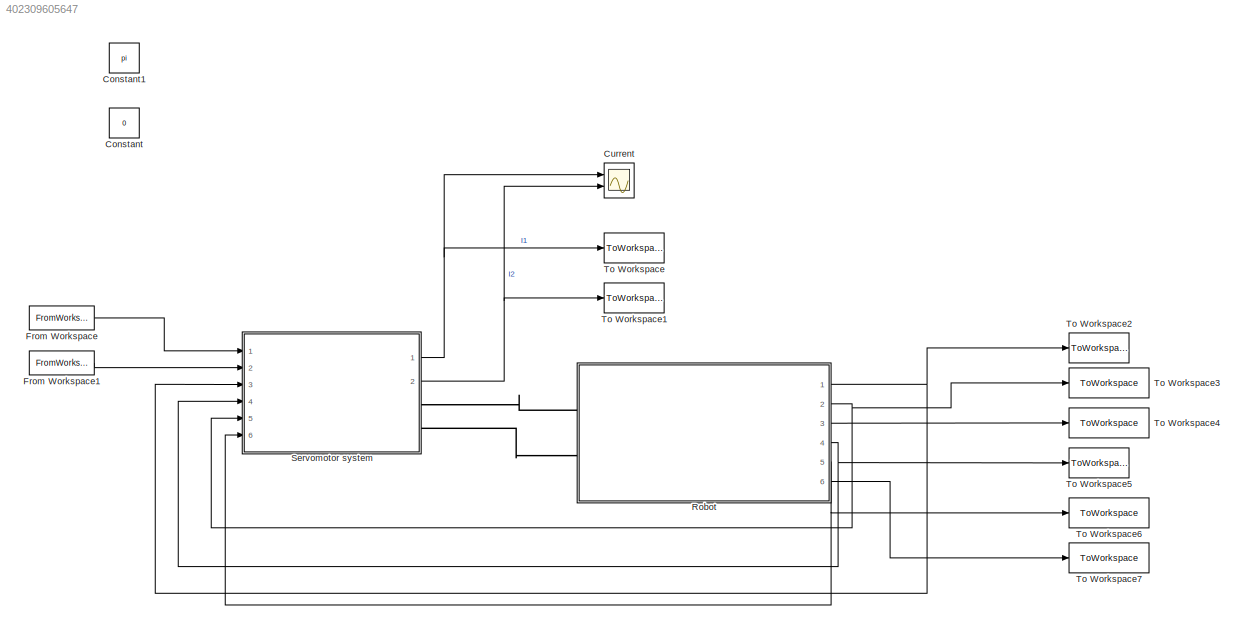
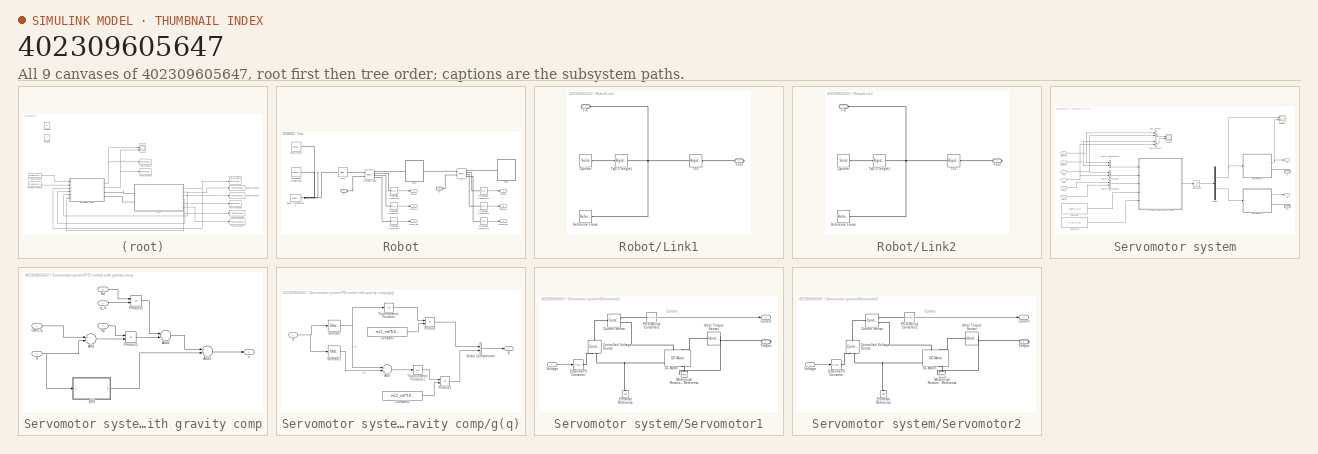
[diagram: thumbnail index - all 9 canvases of the model, root first then tree order]
MODEL slx_402309605647
KIND model
CONFIG AbsTol = auto
CONFIG EnableMultiTasking = off
CONFIG FixedStep = 1e-6
CONFIG MaxStep = auto
CONFIG MinStep = 1e-8
CONFIG RelTol = 1e-3
CONFIG SampleTimeConstraint = Unconstrained
CONFIG Solver = VariableStepAuto
CONFIG SolverName = VariableStepAuto
CONFIG StartTime = 0.0
CONFIG StopTime = tTotal
BLOCK [Constant] Constant
  Commented = on
  Value = 0
BLOCK [Constant] Constant1
  Commented = on
  Value = pi
BLOCK [Scope] Current
  NumInputPorts = 2
  Ports = [2]
  ScopeSpecificationString = Simulink.scopes.TimeScopeBlockCfg('CurrentConfiguration', extmgr.ConfigurationSet(extmgr.Configuration('Core','General UI',true),extmgr.Configuration('Core','Source UI',true),extmgr.Configuration('Sources','WiredSimulink',true,'DataLoggingVariableName','ScopeData1'),extmgr.Configuration('Visuals','Time Domain',true,'SerializedDisplays',{struct('MinYLimReal','-0.32223','MaxYLimReal','1.21648','YLab...<+1515ch>
BLOCK [FromWorkspace] From Workspace
  SampleTime = 0
  VariableName = q1_traj
  ZeroCross = on
BLOCK [FromWorkspace] From Workspace1
  SampleTime = 0
  VariableName = q2_traj
  ZeroCross = on
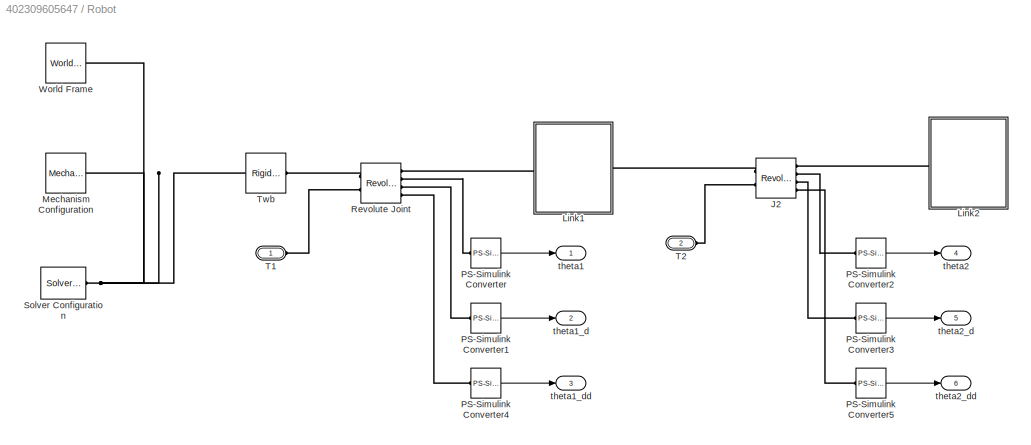
BLOCK [SubSystem] Robot
  Ports = [0, 6, 0, 0, 0, 2]
  RequestExecContextInheritance = off
  Variant = off
BLOCK [Reference] Robot/J2  REF=sm_lib/Joints/Revolute Joint
  Ports = [0, 0, 0, 0, 0, 2, 4]
  SourceBlock = sm_lib/Joints/Revolute Joint
  SourceProductBaseCode = MS
  SourceProductName = Simscape Multibody
  SourceType = Revolute Joint
BLOCK [SubSystem] Robot/Link1
  Ports = [0, 0, 0, 0, 0, 1, 1]
  RequestExecContextInheritance = off
  Variant = off
BLOCK [Reference] Robot/Link1/Cylinder  REF=sm_lib/Body Elements/Solid
  Ports = [0, 0, 0, 0, 0, 0, 1]
  SourceBlock = sm_lib/Body Elements/Solid
  SourceProductBaseCode = MS
  SourceProductName = Simscape Multibody
  SourceType = Solid
BLOCK [PMIOPort] Robot/Link1/Fin
  Port = 1
  Side = Left
BLOCK [PMIOPort] Robot/Link1/Fout
  Port = 2
  Side = Right
BLOCK [Reference] Robot/Link1/Reference Frame  REF=sm_lib/Frames and
Transforms/Reference
Frame
  Ports = [0, 0, 0, 0, 0, 0, 1]
  SourceBlock = sm_lib/Frames and\nTransforms/Reference\nFrame
  SourceProductBaseCode = MS
  SourceProductName = Simscape Multibody
  SourceType = Reference\nFrame
BLOCK [Reference] Robot/Link1/T01  REF=sm_lib/Frames and
Transforms/Rigid
Transform
  Ports = [0, 0, 0, 0, 0, 1, 1]
  SourceBlock = sm_lib/Frames and\nTransforms/Rigid\nTransform
  SourceProductBaseCode = MS
  SourceProductName = Simscape Multibody
  SourceType = Rigid\nTransform
BLOCK [Reference] Robot/Link1/Tz(0.5*length)  REF=sm_lib/Frames and
Transforms/Rigid
Transform
  Ports = [0, 0, 0, 0, 0, 1, 1]
  SourceBlock = sm_lib/Frames and\nTransforms/Rigid\nTransform
  SourceProductBaseCode = MS
  SourceProductName = Simscape Multibody
  SourceType = Rigid\nTransform
BLOCK [SubSystem] Robot/Link2
  Ports = [0, 0, 0, 0, 0, 1, 1]
  RequestExecContextInheritance = off
  Variant = off
BLOCK [Reference] Robot/Link2/Cylinder  REF=sm_lib/Body Elements/Solid
  Ports = [0, 0, 0, 0, 0, 0, 1]
  SourceBlock = sm_lib/Body Elements/Solid
  SourceProductBaseCode = MS
  SourceProductName = Simscape Multibody
  SourceType = Solid
BLOCK [PMIOPort] Robot/Link2/Fin
  Port = 1
  Side = Left
BLOCK [PMIOPort] Robot/Link2/Fout
  Port = 2
  Side = Right
BLOCK [Reference] Robot/Link2/Reference Frame  REF=sm_lib/Frames and
Transforms/Reference
Frame
  Ports = [0, 0, 0, 0, 0, 0, 1]
  SourceBlock = sm_lib/Frames and\nTransforms/Reference\nFrame
  SourceProductBaseCode = MS
  SourceProductName = Simscape Multibody
  SourceType = Reference\nFrame
BLOCK [Reference] Robot/Link2/T01  REF=sm_lib/Frames and
Transforms/Rigid
Transform
  Ports = [0, 0, 0, 0, 0, 1, 1]
  SourceBlock = sm_lib/Frames and\nTransforms/Rigid\nTransform
  SourceProductBaseCode = MS
  SourceProductName = Simscape Multibody
  SourceType = Rigid\nTransform
BLOCK [Reference] Robot/Link2/Tz(0.5*length)  REF=sm_lib/Frames and
Transforms/Rigid
Transform
  Ports = [0, 0, 0, 0, 0, 1, 1]
  SourceBlock = sm_lib/Frames and\nTransforms/Rigid\nTransform
  SourceProductBaseCode = MS
  SourceProductName = Simscape Multibody
  SourceType = Rigid\nTransform
BLOCK [Reference] Robot/Mechanism Configuration  REF=sm_lib/Utilities/Mechanism
Configuration
  Ports = [0, 0, 0, 0, 0, 0, 1]
  SourceBlock = sm_lib/Utilities/Mechanism\nConfiguration
  SourceProductBaseCode = MS
  SourceProductName = Simscape Multibody
  SourceType = Mechanism\nConfiguration
BLOCK [Reference] Robot/PS-Simulink Converter  REF=nesl_utility/PS-Simulink
Converter
  Ports = [0, 1, 0, 0, 0, 1]
  SourceBlock = nesl_utility/PS-Simulink\nConverter
  SourceProductBaseCode = SS
  SourceProductName = Simscape
  SourceType = PS-Simulink\nConverter
BLOCK [Reference] Robot/PS-Simulink Converter1  REF=nesl_utility/PS-Simulink
Converter
  Ports = [0, 1, 0, 0, 0, 1]
  SourceBlock = nesl_utility/PS-Simulink\nConverter
  SourceProductBaseCode = SS
  SourceProductName = Simscape
  SourceType = PS-Simulink\nConverter
BLOCK [Reference] Robot/PS-Simulink Converter2  REF=nesl_utility/PS-Simulink
Converter
  Ports = [0, 1, 0, 0, 0, 1]
  SourceBlock = nesl_utility/PS-Simulink\nConverter
  SourceProductBaseCode = SS
  SourceProductName = Simscape
  SourceType = PS-Simulink\nConverter
BLOCK [Reference] Robot/PS-Simulink Converter3  REF=nesl_utility/PS-Simulink
Converter
  Ports = [0, 1, 0, 0, 0, 1]
  SourceBlock = nesl_utility/PS-Simulink\nConverter
  SourceProductBaseCode = SS
  SourceProductName = Simscape
  SourceType = PS-Simulink\nConverter
BLOCK [Reference] Robot/PS-Simulink Converter4  REF=nesl_utility/PS-Simulink
Converter
  Ports = [0, 1, 0, 0, 0, 1]
  SourceBlock = nesl_utility/PS-Simulink\nConverter
  SourceProductBaseCode = SS
  SourceProductName = Simscape
  SourceType = PS-Simulink\nConverter
BLOCK [Reference] Robot/PS-Simulink Converter5  REF=nesl_utility/PS-Simulink
Converter
  Ports = [0, 1, 0, 0, 0, 1]
  SourceBlock = nesl_utility/PS-Simulink\nConverter
  SourceProductBaseCode = SS
  SourceProductName = Simscape
  SourceType = PS-Simulink\nConverter
BLOCK [Reference] Robot/Revolute Joint  REF=sm_lib/Joints/Revolute Joint
  Ports = [0, 0, 0, 0, 0, 2, 4]
  SourceBlock = sm_lib/Joints/Revolute Joint
  SourceProductBaseCode = MS
  SourceProductName = Simscape Multibody
  SourceType = Revolute Joint
BLOCK [Reference] Robot/Solver Configuration  REF=nesl_utility/Solver
Configuration
  Ports = [0, 0, 0, 0, 0, 0, 1]
  SourceBlock = nesl_utility/Solver\nConfiguration
  SourceProductBaseCode = SS
  SourceProductName = Simscape
  SourceType = Solver\nConfiguration
BLOCK [PMIOPort] Robot/T1
  Port = 1
  Side = Left
BLOCK [PMIOPort] Robot/T2
  Port = 2
  Side = Left
BLOCK [Reference] Robot/Twb  REF=sm_lib/Frames and
Transforms/Rigid
Transform
  Ports = [0, 0, 0, 0, 0, 1, 1]
  SourceBlock = sm_lib/Frames and\nTransforms/Rigid\nTransform
  SourceProductBaseCode = MS
  SourceProductName = Simscape Multibody
  SourceType = Rigid\nTransform
BLOCK [Reference] Robot/World Frame  REF=sm_lib/Frames and
Transforms/World Frame
  Ports = [0, 0, 0, 0, 0, 0, 1]
  SourceBlock = sm_lib/Frames and\nTransforms/World Frame
  SourceProductBaseCode = MS
  SourceProductName = Simscape Multibody
  SourceType = World Frame
BLOCK [Outport] Robot/theta1
  IconDisplay = Port number
BLOCK [Outport] Robot/theta1_d
  IconDisplay = Port number
  Port = 2
BLOCK [Outport] Robot/theta1_dd
  IconDisplay = Port number
  Port = 3
BLOCK [Outport] Robot/theta2
  IconDisplay = Port number
  Port = 4
BLOCK [Outport] Robot/theta2_d
  IconDisplay = Port number
  Port = 5
BLOCK [Outport] Robot/theta2_dd
  IconDisplay = Port number
  Port = 6
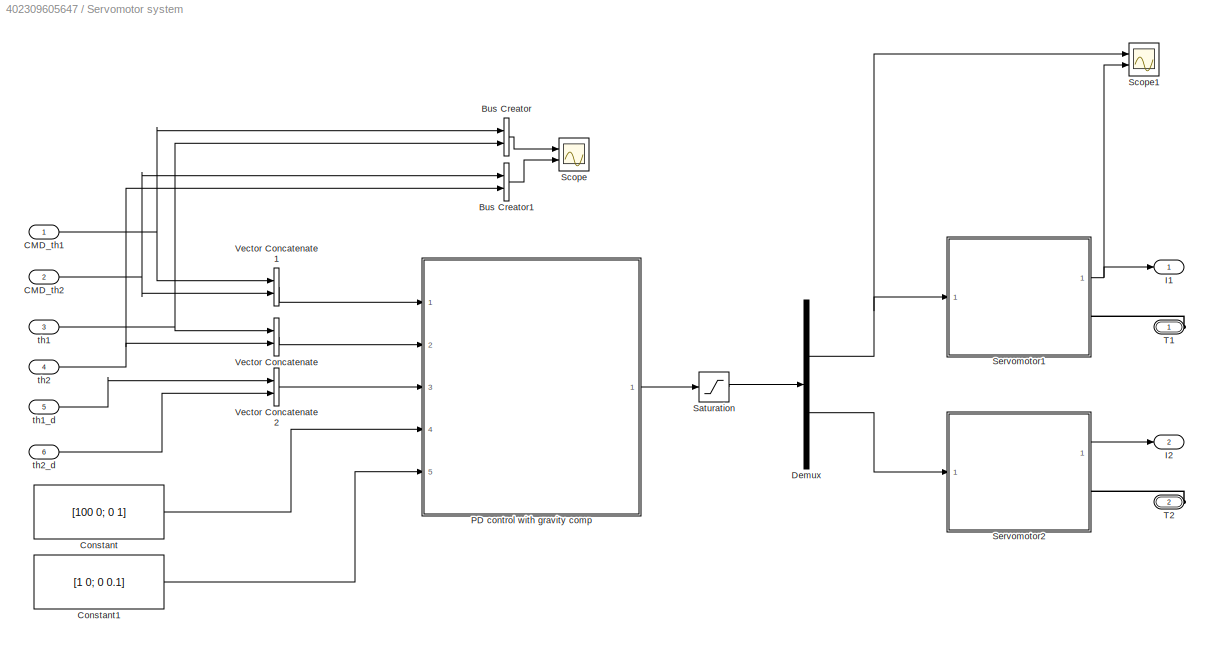
BLOCK [SubSystem] Servomotor system
  Ports = [6, 2, 0, 0, 0, 0, 2]
  RequestExecContextInheritance = off
  Variant = off
BLOCK [BusCreator] Servomotor system/Bus Creator
  DisplayOption = bar
  InheritFromInputs = on
  Inputs = 2
  Ports = [2, 1]
BLOCK [BusCreator] Servomotor system/Bus Creator1
  DisplayOption = bar
  InheritFromInputs = on
  Inputs = 2
  Ports = [2, 1]
BLOCK [Inport] Servomotor system/CMD_th1
  IconDisplay = Port number
BLOCK [Inport] Servomotor system/CMD_th2
  IconDisplay = Port number
  Port = 2
BLOCK [Constant] Servomotor system/Constant
  Value = [100 0; 0 1]
BLOCK [Constant] Servomotor system/Constant1
  Value = [1 0; 0 0.1]
BLOCK [Demux] Servomotor system/Demux
  DisplayOption = bar
  Outputs = 2
  Ports = [1, 2]
BLOCK [Outport] Servomotor system/I1
  IconDisplay = Port number
BLOCK [Outport] Servomotor system/I2
  IconDisplay = Port number
  Port = 2
BLOCK [SubSystem] Servomotor system/PD control with gravity comp
  Ports = [5, 1]
  RequestExecContextInheritance = off
  Variant = off
BLOCK [Sum] Servomotor system/PD control with gravity comp/Add
  InputSameDT = off
  Inputs = +-
  OutDataTypeStr = Inherit: Inherit via internal rule
  Ports = [2, 1]
  SaturateOnIntegerOverflow = off
BLOCK [Sum] Servomotor system/PD control with gravity comp/Add1
  InputSameDT = off
  Inputs = -+
  OutDataTypeStr = Inherit: Inherit via internal rule
  Ports = [2, 1]
  SaturateOnIntegerOverflow = off
BLOCK [Sum] Servomotor system/PD control with gravity comp/Add2
  InputSameDT = off
  OutDataTypeStr = Inherit: Inherit via internal rule
  Ports = [2, 1]
  SaturateOnIntegerOverflow = off
BLOCK [Inport] Servomotor system/PD control with gravity comp/CMD_q
  IconDisplay = Port number
  PortDimensions = [2 1]
BLOCK [Inport] Servomotor system/PD control with gravity comp/Kd
  IconDisplay = Port number
  Port = 5
  PortDimensions = [2 2]
BLOCK [Inport] Servomotor system/PD control with gravity comp/Kp
  IconDisplay = Port number
  Port = 4
  PortDimensions = [2 2]
BLOCK [Product] Servomotor system/PD control with gravity comp/Product1
  InputSameDT = off
  Multiplication = Matrix(*)
  OutDataTypeStr = Inherit: Inherit via internal rule
  Ports = [2, 1]
  RndMeth = Floor
  SaturateOnIntegerOverflow = off
BLOCK [Product] Servomotor system/PD control with gravity comp/Product2
  InputSameDT = off
  Multiplication = Matrix(*)
  OutDataTypeStr = Inherit: Inherit via internal rule
  Ports = [2, 1]
  RndMeth = Floor
  SaturateOnIntegerOverflow = off
BLOCK [SubSystem] Servomotor system/PD control with gravity comp/g(q)
  Ports = [1, 1]
  RequestExecContextInheritance = off
  Variant = off
BLOCK [Sum] Servomotor system/PD control with gravity comp/g(q)/Add
  InputSameDT = off
  OutDataTypeStr = Inherit: Inherit via internal rule
  Ports = [2, 1]
  SaturateOnIntegerOverflow = off
BLOCK [Constant] Servomotor system/PD control with gravity comp/g(q)/Constant
  Value = mL1_val*9.81*lC1_val
BLOCK [Constant] Servomotor system/PD control with gravity comp/g(q)/Constant1
  Value = mL2_val*9.81*lC2_val
BLOCK [Product] Servomotor system/PD control with gravity comp/g(q)/Product
  InputSameDT = off
  OutDataTypeStr = Inherit: Inherit via internal rule
  Ports = [2, 1]
  RndMeth = Floor
  SaturateOnIntegerOverflow = off
BLOCK [Product] Servomotor system/PD control with gravity comp/g(q)/Product1
  InputSameDT = off
  OutDataTypeStr = Inherit: Inherit via internal rule
  Ports = [2, 1]
  RndMeth = Floor
  SaturateOnIntegerOverflow = off
BLOCK [Selector] Servomotor system/PD control with gravity comp/g(q)/Selector
  IndexOptions = Index vector (dialog)
  Indices = 1
  InputPortWidth = 2
  OutputSizes = 1
  Ports = [1, 1]
BLOCK [Selector] Servomotor system/PD control with gravity comp/g(q)/Selector1
  IndexOptions = Index vector (dialog)
  Indices = 2
  InputPortWidth = 2
  OutputSizes = 1
  Ports = [1, 1]
BLOCK [Trigonometry] Servomotor system/PD control with gravity comp/g(q)/Trigonometric Function
  Operator = cos
  Ports = [1, 1]
BLOCK [Trigonometry] Servomotor system/PD control with gravity comp/g(q)/Trigonometric Function1
  Operator = cos
  Ports = [1, 1]
BLOCK [Concatenate] Servomotor system/PD control with gravity comp/g(q)/Vector Concatenate
  Ports = [2, 1]
BLOCK [Outport] Servomotor system/PD control with gravity comp/g(q)/g
  IconDisplay = Port number
  PortDimensions = [ 2 1]
BLOCK [Inport] Servomotor system/PD control with gravity comp/g(q)/q
  IconDisplay = Port number
BLOCK [Inport] Servomotor system/PD control with gravity comp/q
  IconDisplay = Port number
  Port = 2
  PortDimensions = [2 1]
BLOCK [Inport] Servomotor system/PD control with gravity comp/q_d
  IconDisplay = Port number
  Port = 3
  PortDimensions = [2 1]
BLOCK [Outport] Servomotor system/PD control with gravity comp/u
  IconDisplay = Port number
BLOCK [Saturate] Servomotor system/Saturation
  InputPortMap = u0
  LowerLimit = [-V; -V]
  Ports = [1, 1]
  UpperLimit = [V; V]
BLOCK [Scope] Servomotor system/Scope
  NumInputPorts = 2
  Ports = [2]
  ScopeSpecificationString = Simulink.scopes.TimeScopeBlockCfg('CurrentConfiguration', extmgr.ConfigurationSet(extmgr.Configuration('Core','General UI',true),extmgr.Configuration('Core','Source UI',true),extmgr.Configuration('Sources','WiredSimulink',true,'DataLoggingVariableName','ScopeData1'),extmgr.Configuration('Visuals','Time Domain',true,'SerializedDisplays',{struct('MinYLimReal','-0.39271','MaxYLimReal','3.53443','YLab...<+2049ch>
BLOCK [Scope] Servomotor system/Scope1
  NumInputPorts = 2
  Ports = [2]
  ScopeSpecificationString = Simulink.scopes.TimeScopeBlockCfg('CurrentConfiguration', extmgr.ConfigurationSet(extmgr.Configuration('Core','General UI',true),extmgr.Configuration('Core','Source UI',true),extmgr.Configuration('Sources','WiredSimulink',true,'DataLoggingVariableName','ScopeData1'),extmgr.Configuration('Visuals','Time Domain',true,'SerializedDisplays',{struct('MinYLimReal','6.4','MaxYLimReal','8.4','YLabelReal','...<+2024ch>
BLOCK [SubSystem] Servomotor system/Servomotor1
  Ports = [1, 1, 0, 0, 0, 0, 1]
  RequestExecContextInheritance = off
  Variant = off
BLOCK [Reference] Servomotor system/Servomotor1/Controlled Voltage Source  REF=fl_lib/Electrical/Electrical Sources/Controlled Voltage
Source
  Ports = [0, 0, 0, 0, 0, 1, 2]
  SourceBlock = fl_lib/Electrical/Electrical Sources/Controlled Voltage\nSource
  SourceProductBaseCode = SS
  SourceProductName = Simscape
  SourceType = Controlled Voltage\nSource
BLOCK [Outport] Servomotor system/Servomotor1/Current
  IconDisplay = Port number
BLOCK [Reference] Servomotor system/Servomotor1/Current Sensor  REF=fl_lib/Electrical/Electrical Sensors/Current Sensor
  Ports = [0, 0, 0, 0, 0, 1, 2]
  SourceBlock = fl_lib/Electrical/Electrical Sensors/Current Sensor
  SourceProductBaseCode = SS
  SourceProductName = Simscape
  SourceType = Current Sensor
BLOCK [Reference] Servomotor system/Servomotor1/DC Motor  REF=elec_lib/Actuators & Drivers/Rotational Actuators/DC Motor
  Ports = [0, 0, 0, 0, 0, 2, 2]
  SourceBlock = elec_lib/Actuators & Drivers/Rotational Actuators/DC Motor
  SourceProductBaseCode = SN
  SourceProductName = Simscape Electronics
  SourceType = DC Motor
BLOCK [Reference] Servomotor system/Servomotor1/Electrical Reference  REF=fl_lib/Electrical/Electrical Elements/Electrical Reference
  Ports = [0, 0, 0, 0, 0, 1]
  SourceBlock = fl_lib/Electrical/Electrical Elements/Electrical Reference
  SourceProductBaseCode = SS
  SourceProductName = Simscape
  SourceType = Electrical Reference
BLOCK [Reference] Servomotor system/Servomotor1/Ideal Torque Sensor  REF=fl_lib/Mechanical/Mechanical Sensors/Ideal Torque Sensor
  Ports = [0, 0, 0, 0, 0, 1, 2]
  SourceBlock = fl_lib/Mechanical/Mechanical Sensors/Ideal Torque Sensor
  SourceProductBaseCode = SS
  SourceProductName = Simscape
  SourceType = Ideal Torque Sensor
BLOCK [Reference] Servomotor system/Servomotor1/Mechanical Rotational Reference  REF=fl_lib/Mechanical/Rotational Elements/Mechanical
Rotational Reference
  Ports = [0, 0, 0, 0, 0, 1]
  SourceBlock = fl_lib/Mechanical/Rotational Elements/Mechanical\nRotational Reference
  SourceProductBaseCode = SS
  SourceProductName = Simscape
  SourceType = Mechanical\nRotational Reference
BLOCK [Reference] Servomotor system/Servomotor1/PS-Simulink Converter1  REF=nesl_utility/PS-Simulink
Converter
  Ports = [0, 1, 0, 0, 0, 1]
  SourceBlock = nesl_utility/PS-Simulink\nConverter
  SourceProductBaseCode = SS
  SourceProductName = Simscape
  SourceType = PS-Simulink\nConverter
BLOCK [Reference] Servomotor system/Servomotor1/Simulink-PS Converter  REF=nesl_utility/Simulink-PS
Converter
  Ports = [1, 0, 0, 0, 0, 0, 1]
  SourceBlock = nesl_utility/Simulink-PS\nConverter
  SourceProductBaseCode = SS
  SourceProductName = Simscape
  SourceType = Simulink-PS\nConverter
BLOCK [PMIOPort] Servomotor system/Servomotor1/Torque
  Port = 1
  Side = Right
BLOCK [Inport] Servomotor system/Servomotor1/Voltage
  IconDisplay = Port number
BLOCK [SubSystem] Servomotor system/Servomotor2
  Ports = [1, 1, 0, 0, 0, 0, 1]
  RequestExecContextInheritance = off
  Variant = off
BLOCK [Reference] Servomotor system/Servomotor2/Controlled Voltage Source  REF=fl_lib/Electrical/Electrical Sources/Controlled Voltage
Source
  Ports = [0, 0, 0, 0, 0, 1, 2]
  SourceBlock = fl_lib/Electrical/Electrical Sources/Controlled Voltage\nSource
  SourceProductBaseCode = SS
  SourceProductName = Simscape
  SourceType = Controlled Voltage\nSource
BLOCK [Outport] Servomotor system/Servomotor2/Current
  IconDisplay = Port number
BLOCK [Reference] Servomotor system/Servomotor2/Current Sensor  REF=fl_lib/Electrical/Electrical Sensors/Current Sensor
  Ports = [0, 0, 0, 0, 0, 1, 2]
  SourceBlock = fl_lib/Electrical/Electrical Sensors/Current Sensor
  SourceProductBaseCode = SS
  SourceProductName = Simscape
  SourceType = Current Sensor
BLOCK [Reference] Servomotor system/Servomotor2/DC Motor  REF=elec_lib/Actuators & Drivers/Rotational Actuators/DC Motor
  Ports = [0, 0, 0, 0, 0, 2, 2]
  SourceBlock = elec_lib/Actuators & Drivers/Rotational Actuators/DC Motor
  SourceProductBaseCode = SN
  SourceProductName = Simscape Electronics
  SourceType = DC Motor
BLOCK [Reference] Servomotor system/Servomotor2/Electrical Reference  REF=fl_lib/Electrical/Electrical Elements/Electrical Reference
  Ports = [0, 0, 0, 0, 0, 1]
  SourceBlock = fl_lib/Electrical/Electrical Elements/Electrical Reference
  SourceProductBaseCode = SS
  SourceProductName = Simscape
  SourceType = Electrical Reference
BLOCK [Reference] Servomotor system/Servomotor2/Ideal Torque Sensor  REF=fl_lib/Mechanical/Mechanical Sensors/Ideal Torque Sensor
  Ports = [0, 0, 0, 0, 0, 1, 2]
  SourceBlock = fl_lib/Mechanical/Mechanical Sensors/Ideal Torque Sensor
  SourceProductBaseCode = SS
  SourceProductName = Simscape
  SourceType = Ideal Torque Sensor
BLOCK [Reference] Servomotor system/Servomotor2/Mechanical Rotational Reference  REF=fl_lib/Mechanical/Rotational Elements/Mechanical
Rotational Reference
  Ports = [0, 0, 0, 0, 0, 1]
  SourceBlock = fl_lib/Mechanical/Rotational Elements/Mechanical\nRotational Reference
  SourceProductBaseCode = SS
  SourceProductName = Simscape
  SourceType = Mechanical\nRotational Reference
BLOCK [Reference] Servomotor system/Servomotor2/PS-Simulink Converter1  REF=nesl_utility/PS-Simulink
Converter
  Ports = [0, 1, 0, 0, 0, 1]
  SourceBlock = nesl_utility/PS-Simulink\nConverter
  SourceProductBaseCode = SS
  SourceProductName = Simscape
  SourceType = PS-Simulink\nConverter
BLOCK [Reference] Servomotor system/Servomotor2/Simulink-PS Converter  REF=nesl_utility/Simulink-PS
Converter
  Ports = [1, 0, 0, 0, 0, 0, 1]
  SourceBlock = nesl_utility/Simulink-PS\nConverter
  SourceProductBaseCode = SS
  SourceProductName = Simscape
  SourceType = Simulink-PS\nConverter
BLOCK [PMIOPort] Servomotor system/Servomotor2/Torque
  Port = 1
  Side = Right
BLOCK [Inport] Servomotor system/Servomotor2/Voltage
  IconDisplay = Port number
BLOCK [PMIOPort] Servomotor system/T1
  Port = 1
  Side = Right
BLOCK [PMIOPort] Servomotor system/T2
  Port = 2
  Side = Right
BLOCK [Concatenate] Servomotor system/Vector Concatenate
  Ports = [2, 1]
BLOCK [Concatenate] Servomotor system/Vector Concatenate1
  Ports = [2, 1]
BLOCK [Concatenate] Servomotor system/Vector Concatenate2
  Ports = [2, 1]
BLOCK [Inport] Servomotor system/th1
  IconDisplay = Port number
  Port = 3
BLOCK [Inport] Servomotor system/th1_d
  IconDisplay = Port number
  Port = 5
BLOCK [Inport] Servomotor system/th2
  IconDisplay = Port number
  Port = 4
BLOCK [Inport] Servomotor system/th2_d
  IconDisplay = Port number
  Port = 6
BLOCK [ToWorkspace] To Workspace
  FixptAsFi = on
  MaxDataPoints = inf
  Ports = [1]
  SampleTime = ts
  Save2DSignal = 3-D array (concatenate along third dimension)
  SaveFormat = Timeseries
  VariableName = I1
BLOCK [ToWorkspace] To Workspace1
  FixptAsFi = on
  MaxDataPoints = inf
  Ports = [1]
  SampleTime = ts
  Save2DSignal = 3-D array (concatenate along third dimension)
  SaveFormat = Timeseries
  VariableName = I2
BLOCK [ToWorkspace] To Workspace2
  FixptAsFi = on
  MaxDataPoints = inf
  Ports = [1]
  SampleTime = ts
  Save2DSignal = 3-D array (concatenate along third dimension)
  SaveFormat = Timeseries
  VariableName = theta1
BLOCK [ToWorkspace] To Workspace3
  FixptAsFi = on
  MaxDataPoints = inf
  Ports = [1]
  SampleTime = ts
  Save2DSignal = 3-D array (concatenate along third dimension)
  SaveFormat = Timeseries
  VariableName = theta1_d
BLOCK [ToWorkspace] To Workspace4
  FixptAsFi = on
  MaxDataPoints = inf
  Ports = [1]
  SampleTime = ts
  Save2DSignal = 3-D array (concatenate along third dimension)
  SaveFormat = Timeseries
  VariableName = theta1_dd
BLOCK [ToWorkspace] To Workspace5
  FixptAsFi = on
  MaxDataPoints = inf
  Ports = [1]
  SampleTime = ts
  Save2DSignal = 3-D array (concatenate along third dimension)
  SaveFormat = Timeseries
  VariableName = theta2
BLOCK [ToWorkspace] To Workspace6
  FixptAsFi = on
  MaxDataPoints = inf
  Ports = [1]
  SampleTime = ts
  Save2DSignal = 3-D array (concatenate along third dimension)
  SaveFormat = Timeseries
  VariableName = theta2_d
BLOCK [ToWorkspace] To Workspace7
  FixptAsFi = on
  MaxDataPoints = inf
  Ports = [1]
  SampleTime = ts
  Save2DSignal = 3-D array (concatenate along third dimension)
  SaveFormat = Timeseries
  VariableName = theta2_dd
ANNOTATION Servomotor system/Servomotor1: Current
ANNOTATION Servomotor system/Servomotor2: Current
LINE From Workspace1:1 -> Servomotor system:2
LINE From Workspace:1 -> Servomotor system:1
LINE Robot/PS-Simulink Converter1:1 -> Robot/theta1_d:1
LINE Robot/PS-Simulink Converter2:1 -> Robot/theta2:1
LINE Robot/PS-Simulink Converter3:1 -> Robot/theta2_d:1
LINE Robot/PS-Simulink Converter4:1 -> Robot/theta1_dd:1
LINE Robot/PS-Simulink Converter5:1 -> Robot/theta2_dd:1
LINE Robot/PS-Simulink Converter:1 -> Robot/theta1:1
NET Robot:1 -> Servomotor system:3, To Workspace2:1
NET Robot:2 -> Servomotor system:5, To Workspace3:1
LINE Robot:3 -> To Workspace4:1
NET Robot:4 -> Servomotor system:4, To Workspace5:1
NET Robot:5 -> Servomotor system:6, To Workspace6:1
LINE Robot:6 -> To Workspace7:1
LINE Servomotor system/Bus Creator1:1 -> Servomotor system/Scope:2
LINE Servomotor system/Bus Creator:1 -> Servomotor system/Scope:1
NET Servomotor system/CMD_th1:1 -> Servomotor system/Bus Creator:1, Servomotor system/Vector Concatenate1:1
NET Servomotor system/CMD_th2:1 -> Servomotor system/Bus Creator1:1, Servomotor system/Vector Concatenate1:2
LINE Servomotor system/Constant1:1 -> Servomotor system/PD control with gravity comp:5
LINE Servomotor system/Constant:1 -> Servomotor system/PD control with gravity comp:4
NET Servomotor system/Demux:1 -> Servomotor system/Scope1:1, Servomotor system/Servomotor1:1
LINE Servomotor system/Demux:2 -> Servomotor system/Servomotor2:1
LINE Servomotor system/PD control with gravity comp/Add1:1 -> Servomotor system/PD control with gravity comp/Add2:1
LINE Servomotor system/PD control with gravity comp/Add2:1 -> Servomotor system/PD control with gravity comp/u:1
LINE Servomotor system/PD control with gravity comp/Add:1 -> Servomotor system/PD control with gravity comp/Product1:2
LINE Servomotor system/PD control with gravity comp/CMD_q:1 -> Servomotor system/PD control with gravity comp/Add:1
LINE Servomotor system/PD control with gravity comp/Kd:1 -> Servomotor system/PD control with gravity comp/Product2:1
LINE Servomotor system/PD control with gravity comp/Kp:1 -> Servomotor system/PD control with gravity comp/Product1:1
LINE Servomotor system/PD control with gravity comp/Product1:1 -> Servomotor system/PD control with gravity comp/Add1:2
LINE Servomotor system/PD control with gravity comp/Product2:1 -> Servomotor system/PD control with gravity comp/Add1:1
LINE Servomotor system/PD control with gravity comp/g(q)/Add:1 -> Servomotor system/PD control with gravity comp/g(q)/Trigonometric Function1:1
LINE Servomotor system/PD control with gravity comp/g(q)/Constant1:1 -> Servomotor system/PD control with gravity comp/g(q)/Product1:2
LINE Servomotor system/PD control with gravity comp/g(q)/Constant:1 -> Servomotor system/PD control with gravity comp/g(q)/Product:2
LINE Servomotor system/PD control with gravity comp/g(q)/Product1:1 -> Servomotor system/PD control with gravity comp/g(q)/Vector Concatenate:2
LINE Servomotor system/PD control with gravity comp/g(q)/Product:1 -> Servomotor system/PD control with gravity comp/g(q)/Vector Concatenate:1
LINE Servomotor system/PD control with gravity comp/g(q)/Selector1:1 -> Servomotor system/PD control with gravity comp/g(q)/Add:2
NET Servomotor system/PD control with gravity comp/g(q)/Selector:1 -> Servomotor system/PD control with gravity comp/g(q)/Add:1, Servomotor system/PD control with gravity comp/g(q)/Trigonometric Function:1
LINE Servomotor system/PD control with gravity comp/g(q)/Trigonometric Function1:1 -> Servomotor system/PD control with gravity comp/g(q)/Product1:1
LINE Servomotor system/PD control with gravity comp/g(q)/Trigonometric Function:1 -> Servomotor system/PD control with gravity comp/g(q)/Product:1
LINE Servomotor system/PD control with gravity comp/g(q)/Vector Concatenate:1 -> Servomotor system/PD control with gravity comp/g(q)/g:1
NET Servomotor system/PD control with gravity comp/g(q)/q:1 -> Servomotor system/PD control with gravity comp/g(q)/Selector1:1, Servomotor system/PD control with gravity comp/g(q)/Selector:1
LINE Servomotor system/PD control with gravity comp/g(q):1 -> Servomotor system/PD control with gravity comp/Add2:2
NET Servomotor system/PD control with gravity comp/q:1 -> Servomotor system/PD control with gravity comp/Add:2, Servomotor system/PD control with gravity comp/g(q):1
LINE Servomotor system/PD control with gravity comp/q_d:1 -> Servomotor system/PD control with gravity comp/Product2:2
LINE Servomotor system/PD control with gravity comp:1 -> Servomotor system/Saturation:1
LINE Servomotor system/Saturation:1 -> Servomotor system/Demux:1
LINE Servomotor system/Servomotor1/PS-Simulink Converter1:1 -> Servomotor system/Servomotor1/Current:1
LINE Servomotor system/Servomotor1/Voltage:1 -> Servomotor system/Servomotor1/Simulink-PS Converter:1
NET Servomotor system/Servomotor1:1 -> Servomotor system/I1:1, Servomotor system/Scope1:2
LINE Servomotor system/Servomotor2/PS-Simulink Converter1:1 -> Servomotor system/Servomotor2/Current:1
LINE Servomotor system/Servomotor2/Voltage:1 -> Servomotor system/Servomotor2/Simulink-PS Converter:1
LINE Servomotor system/Servomotor2:1 -> Servomotor system/I2:1
LINE Servomotor system/Vector Concatenate1:1 -> Servomotor system/PD control with gravity comp:1
LINE Servomotor system/Vector Concatenate2:1 -> Servomotor system/PD control with gravity comp:3
LINE Servomotor system/Vector Concatenate:1 -> Servomotor system/PD control with gravity comp:2
NET Servomotor system/th1:1 -> Servomotor system/Bus Creator:2, Servomotor system/Vector Concatenate:1
LINE Servomotor system/th1_d:1 -> Servomotor system/Vector Concatenate2:1
NET Servomotor system/th2:1 -> Servomotor system/Bus Creator1:2, Servomotor system/Vector Concatenate:2
LINE Servomotor system/th2_d:1 -> Servomotor system/Vector Concatenate2:2
NET Servomotor system:1 -> Current:1, To Workspace:1
NET Servomotor system:2 -> Current:2, To Workspace1:1
PLINE Robot/J2:LConn1 -- Robot/Link1:RConn1
PLINE Robot/J2:LConn2 -- Robot/T2:RConn1
PLINE Robot/J2:RConn1 -- Robot/Link2:LConn1
PLINE Robot/J2:RConn2 -- Robot/PS-Simulink Converter2:LConn1
PLINE Robot/J2:RConn3 -- Robot/PS-Simulink Converter3:LConn1
PLINE Robot/J2:RConn4 -- Robot/PS-Simulink Converter5:LConn1
PLINE Robot/Link1/Cylinder:RConn1 -- Robot/Link1/Tz(0.5*length):LConn1
PNET net1: Robot/Link1/Fin:RConn1 -- Robot/Link1/Reference Frame:RConn1 -- Robot/Link1/T01:LConn1 -- Robot/Link1/Tz(0.5*length):RConn1
PLINE Robot/Link1/Fout:RConn1 -- Robot/Link1/T01:RConn1
PLINE Robot/Link1:LConn1 -- Robot/Revolute Joint:RConn1
PLINE Robot/Link2/Cylinder:RConn1 -- Robot/Link2/Tz(0.5*length):LConn1
PNET net2: Robot/Link2/Fin:RConn1 -- Robot/Link2/Reference Frame:RConn1 -- Robot/Link2/T01:LConn1 -- Robot/Link2/Tz(0.5*length):RConn1
PLINE Robot/Link2/Fout:RConn1 -- Robot/Link2/T01:RConn1
PNET net3: Robot/Mechanism Configuration:RConn1 -- Robot/Solver Configuration:RConn1 -- Robot/Twb:LConn1 -- Robot/World Frame:RConn1
PLINE Robot/PS-Simulink Converter1:LConn1 -- Robot/Revolute Joint:RConn3
PLINE Robot/PS-Simulink Converter4:LConn1 -- Robot/Revolute Joint:RConn4
PLINE Robot/PS-Simulink Converter:LConn1 -- Robot/Revolute Joint:RConn2
PLINE Robot/Revolute Joint:LConn1 -- Robot/Twb:RConn1
PLINE Robot/Revolute Joint:LConn2 -- Robot/T1:RConn1
PLINE Robot:LConn1 -- Servomotor system:RConn1
PLINE Robot:LConn2 -- Servomotor system:RConn2
PLINE Servomotor system/Servomotor1/Controlled Voltage Source:LConn1 -- Servomotor system/Servomotor1/Current Sensor:LConn1
PLINE Servomotor system/Servomotor1/Controlled Voltage Source:RConn1 -- Servomotor system/Servomotor1/Simulink-PS Converter:RConn1
PNET net4: Servomotor system/Servomotor1/Controlled Voltage Source:RConn2 -- Servomotor system/Servomotor1/DC Motor:RConn1 -- Servomotor system/Servomotor1/Electrical Reference:LConn1
PLINE Servomotor system/Servomotor1/Current Sensor:RConn1 -- Servomotor system/Servomotor1/PS-Simulink Converter1:LConn1
PLINE Servomotor system/Servomotor1/Current Sensor:RConn2 -- Servomotor system/Servomotor1/DC Motor:LConn1
PLINE Servomotor system/Servomotor1/DC Motor:LConn2 -- Servomotor system/Servomotor1/Ideal Torque Sensor:LConn1
PNET net5: Servomotor system/Servomotor1/DC Motor:RConn2 -- Servomotor system/Servomotor1/Ideal Torque Sensor:RConn1 -- Servomotor system/Servomotor1/Mechanical Rotational Reference:LConn1
PLINE Servomotor system/Servomotor1/Ideal Torque Sensor:RConn2 -- Servomotor system/Servomotor1/Torque:RConn1
PLINE Servomotor system/Servomotor1:RConn1 -- Servomotor system/T1:RConn1
PLINE Servomotor system/Servomotor2/Controlled Voltage Source:LConn1 -- Servomotor system/Servomotor2/Current Sensor:LConn1
PLINE Servomotor system/Servomotor2/Controlled Voltage Source:RConn1 -- Servomotor system/Servomotor2/Simulink-PS Converter:RConn1
PNET net6: Servomotor system/Servomotor2/Controlled Voltage Source:RConn2 -- Servomotor system/Servomotor2/DC Motor:RConn1 -- Servomotor system/Servomotor2/Electrical Reference:LConn1
PLINE Servomotor system/Servomotor2/Current Sensor:RConn1 -- Servomotor system/Servomotor2/PS-Simulink Converter1:LConn1
PLINE Servomotor system/Servomotor2/Current Sensor:RConn2 -- Servomotor system/Servomotor2/DC Motor:LConn1
PLINE Servomotor system/Servomotor2/DC Motor:LConn2 -- Servomotor system/Servomotor2/Ideal Torque Sensor:LConn1
PNET net7: Servomotor system/Servomotor2/DC Motor:RConn2 -- Servomotor system/Servomotor2/Ideal Torque Sensor:RConn1 -- Servomotor system/Servomotor2/Mechanical Rotational Reference:LConn1
PLINE Servomotor system/Servomotor2/Ideal Torque Sensor:RConn2 -- Servomotor system/Servomotor2/Torque:RConn1
PLINE Servomotor system/Servomotor2:RConn1 -- Servomotor system/T2:RConn1
note: NET lines group one-source signal fan-out (src -> all destinations, sorted); 1:1 wires keep LINE; PNET lines group multi-terminal physical nets as a canonical sorted terminal list (undirected conserving connections); 2-terminal nets keep the pairwise PLINE form
